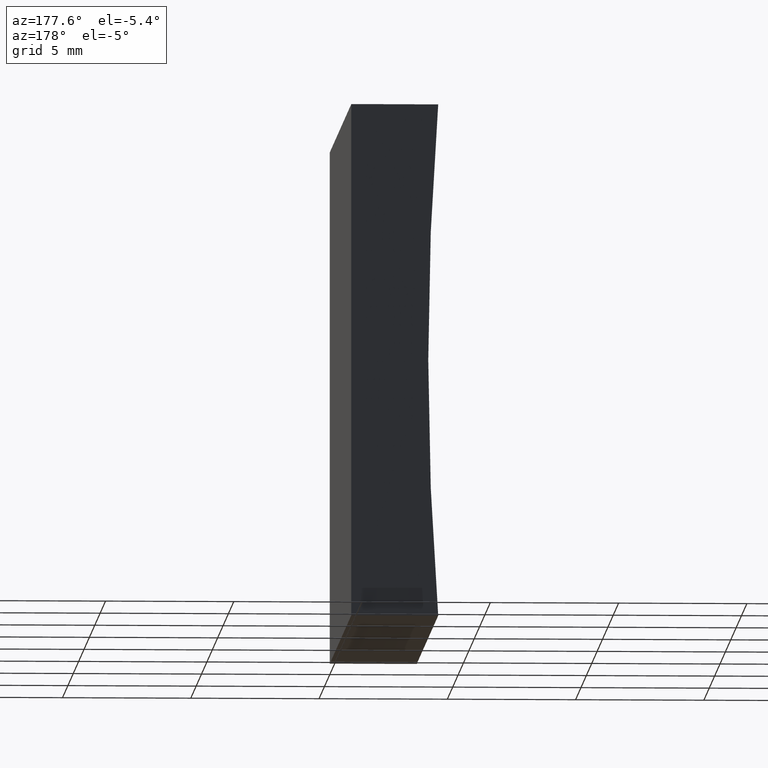
[diagram: clean part render]
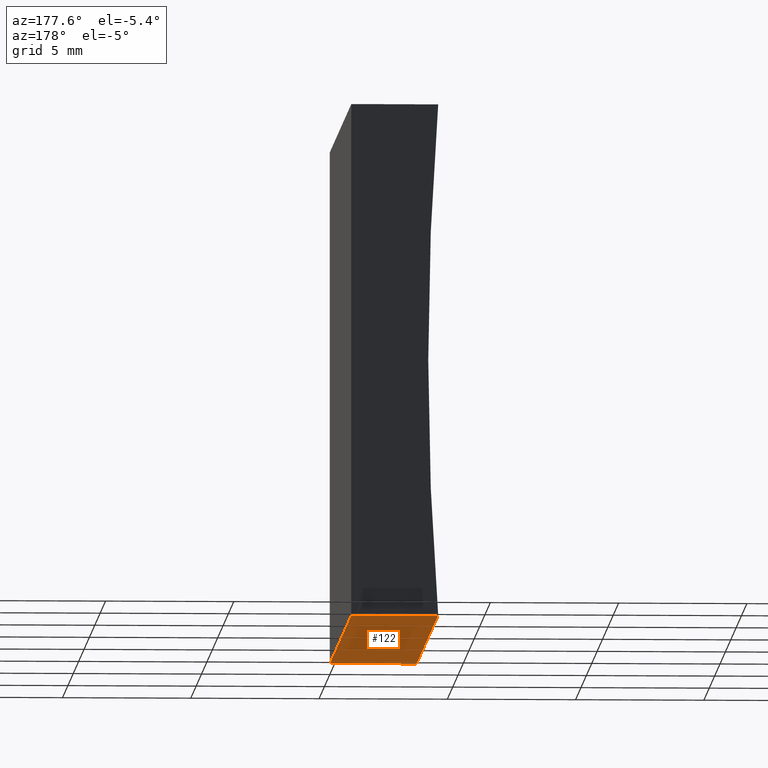
[diagram: same view with one face highlighted and labeled with its STEP entity id]
A machine part, auxiliary view. The second image highlights one B-rep face of the part: STEP entity #122.
In plain terms, the highlighted planar face has unit normal (0, -0, 1).
Its self-contained STEP definition (entity closure, byte-faithful):
#4 = VECTOR ( 'NONE', #200, 1000.000000000000000 ) ;
#11 = ORIENTED_EDGE ( 'NONE', *, *, #67, .F. ) ;
#12 = PLANE ( 'NONE',  #120 ) ;
#13 = CARTESIAN_POINT ( 'NONE',  ( -3.387427854322250000, 20.00000000000000000, 1.214306433183765000E-014 ) ) ;
#23 = LINE ( 'NONE', #48, #42 ) ;
#33 = VECTOR ( 'NONE', #151, 1000.000000000000000 ) ;
#35 = VERTEX_POINT ( 'NONE', #201 ) ;
#37 = LINE ( 'NONE', #13, #148 ) ;
#42 = VECTOR ( 'NONE', #180, 1000.000000000000000 ) ;
#43 = VERTEX_POINT ( 'NONE', #183 ) ;
#48 = CARTESIAN_POINT ( 'NONE',  ( 0.0000000000000000000, 20.00000000000000000, 0.0000000000000000000 ) ) ;
#67 = EDGE_CURVE ( 'NONE', #43, #35, #37, .T. ) ;
#70 = EDGE_LOOP ( 'NONE', ( #162, #11, #145, #174 ) ) ;
#71 = FACE_OUTER_BOUND ( 'NONE', #70, .T. ) ;
#85 = DIRECTION ( 'NONE',  ( 0.0000000000000000000, -0.0000000000000000000, 1.000000000000000000 ) ) ;
#89 = EDGE_CURVE ( 'NONE', #194, #35, #99, .T. ) ;
#93 = CARTESIAN_POINT ( 'NONE',  ( 0.0000000000000000000, 20.00000000000000000, 0.0000000000000000000 ) ) ;
#99 = LINE ( 'NONE', #189, #4 ) ;
#105 = CARTESIAN_POINT ( 'NONE',  ( 0.0000000000000000000, 20.00000000000000000, 0.0000000000000000000 ) ) ;
#117 = VERTEX_POINT ( 'NONE', #171 ) ;
#120 = AXIS2_PLACEMENT_3D ( 'NONE', #105, #85, #160 ) ;
#122 = ADVANCED_FACE ( 'NONE', ( #71 ), #12, .F. ) ;
#144 = EDGE_CURVE ( 'NONE', #117, #43, #150, .T. ) ;
#145 = ORIENTED_EDGE ( 'NONE', *, *, #144, .F. ) ;
#148 = VECTOR ( 'NONE', #192, 1000.000000000000000 ) ;
#150 = LINE ( 'NONE', #93, #33 ) ;
#151 = DIRECTION ( 'NONE',  ( -1.000000000000000000, 0.0000000000000000000, 0.0000000000000000000 ) ) ;
#160 = DIRECTION ( 'NONE',  ( 1.000000000000000000, 0.0000000000000000000, -0.0000000000000000000 ) ) ;
#162 = ORIENTED_EDGE ( 'NONE', *, *, #89, .T. ) ;
#164 = EDGE_CURVE ( 'NONE', #117, #194, #23, .T. ) ;
#169 = CARTESIAN_POINT ( 'NONE',  ( 0.0000000000000000000, 0.0000000000000000000, 0.0000000000000000000 ) ) ;
#171 = CARTESIAN_POINT ( 'NONE',  ( 0.0000000000000000000, 20.00000000000000000, 0.0000000000000000000 ) ) ;
#174 = ORIENTED_EDGE ( 'NONE', *, *, #164, .T. ) ;
#180 = DIRECTION ( 'NONE',  ( -0.0000000000000000000, -1.000000000000000000, -0.0000000000000000000 ) ) ;
#183 = CARTESIAN_POINT ( 'NONE',  ( -3.387427854322250000, 20.00000000000000000, 1.214306433183765000E-014 ) ) ;
#189 = CARTESIAN_POINT ( 'NONE',  ( 0.0000000000000000000, 0.0000000000000000000, 0.0000000000000000000 ) ) ;
#192 = DIRECTION ( 'NONE',  ( -0.0000000000000000000, -1.000000000000000000, -0.0000000000000000000 ) ) ;
#194 = VERTEX_POINT ( 'NONE', #169 ) ;
#200 = DIRECTION ( 'NONE',  ( -1.000000000000000000, 0.0000000000000000000, 0.0000000000000000000 ) ) ;
#201 = CARTESIAN_POINT ( 'NONE',  ( -3.387427854322250000, 0.0000000000000000000, 1.214306433183765000E-014 ) ) ;